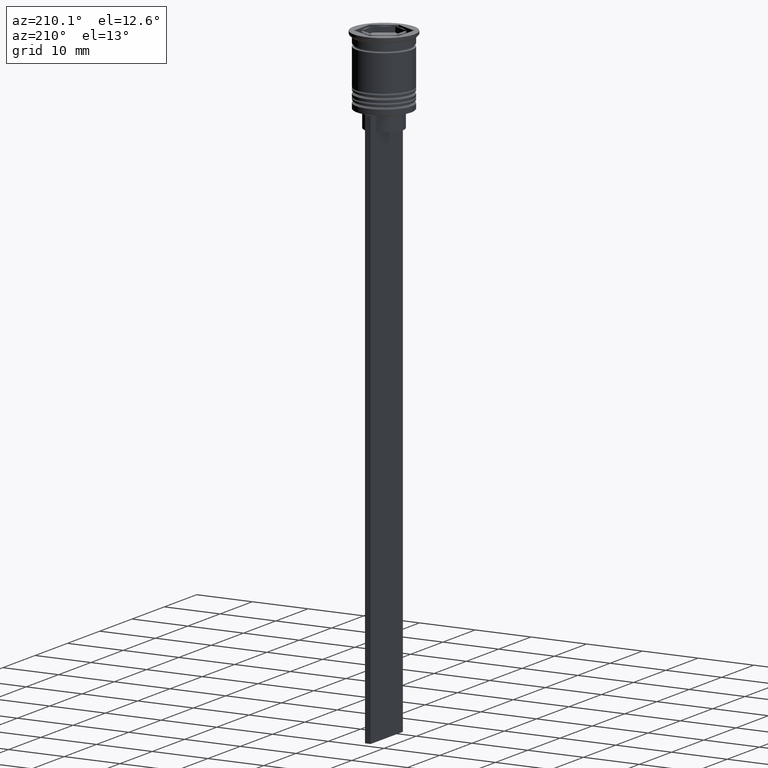
[diagram: clean part render]
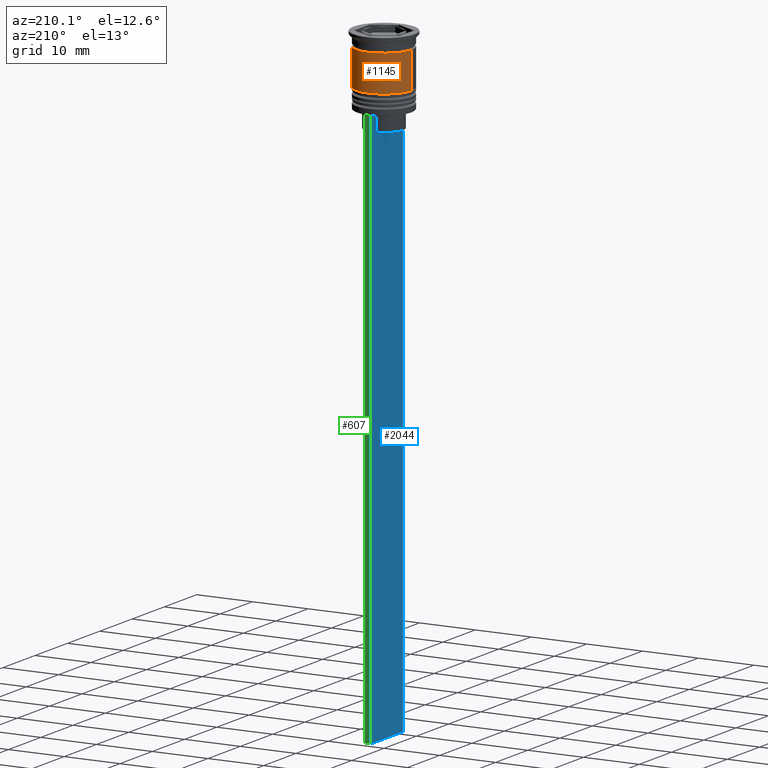
[diagram: same view with three faces highlighted in distinct colors, each labeled with its STEP entity id]
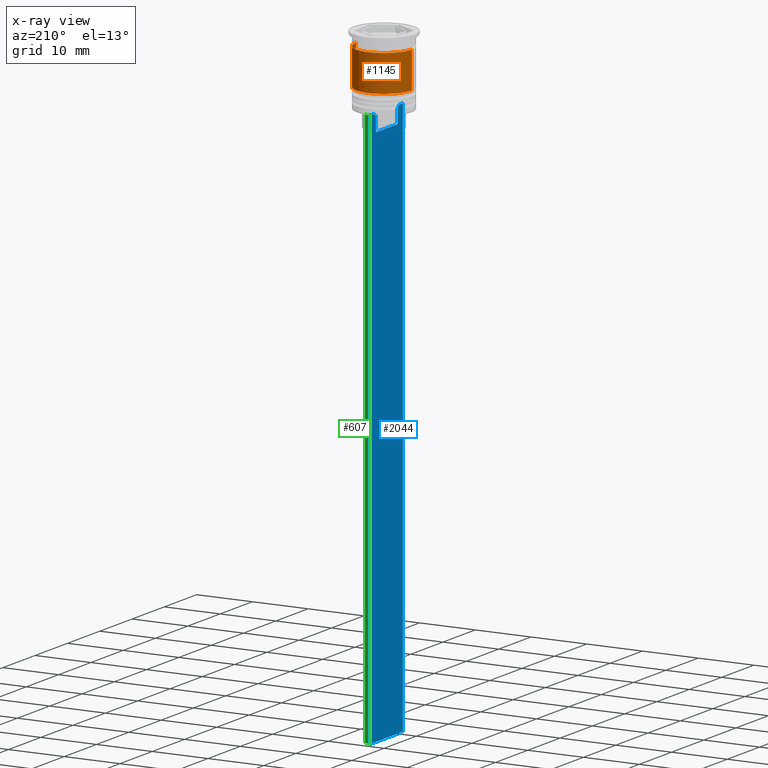
[diagram: x-ray of the same camera — body ghosted, the three highlighted faces saturated]
A machine part, auxiliary view with three faces highlighted in distinct colors.
The next image is the same camera in x-ray (body ghosted, the three faces saturated) — at least one of them is partly hidden behind the body in this view.
Their STEP definitions:

[orange] entity #1145 — the highlighted cylindrical surface (edge-blend (fillet) strip) has radius 5 mm, axis along (-0, -0, 1).
#58 = EDGE_CURVE ( 'NONE', #1689, #1181, #1829, .T. ) ;
#250 = ORIENTED_EDGE ( 'NONE', *, *, #58, .T. ) ;
#358 = DIRECTION ( 'NONE',  ( -0.000000000000000000, -0.000000000000000000, 1.000000000000000000 ) ) ;
#446 = CARTESIAN_POINT ( 'NONE',  ( -5.000000000000000888, 6.123233995736767268E-16, -9.000000000000001776 ) ) ;
#502 = AXIS2_PLACEMENT_3D ( 'NONE', #1012, #358, #2568 ) ;
#648 = DIRECTION ( 'NONE',  ( -0.000000000000000000, -0.000000000000000000, 1.000000000000000000 ) ) ;
#686 = CYLINDRICAL_SURFACE ( 'NONE', #2014, 5.000000000000000000 ) ;
#736 = LINE ( 'NONE', #1928, #2223 ) ;
#811 = LINE ( 'NONE', #1557, #1978 ) ;
#850 = CARTESIAN_POINT ( 'NONE',  ( 4.999999999999999112, 0.000000000000000000, -2.500000000000000000 ) ) ;
#881 = CARTESIAN_POINT ( 'NONE',  ( 0.000000000000000000, 0.000000000000000000, 0.000000000000000000 ) ) ;
#882 = CARTESIAN_POINT ( 'NONE',  ( -4.999999999999999112, 6.123233995736766282E-16, -2.500000000000000000 ) ) ;
#1012 = CARTESIAN_POINT ( 'NONE',  ( 0.000000000000000000, 0.000000000000000000, -9.000000000000001776 ) ) ;
#1145 = ADVANCED_FACE ( 'NONE', ( #2284 ), #686, .T. ) ;
#1147 = DIRECTION ( 'NONE',  ( -0.000000000000000000, -0.000000000000000000, 1.000000000000000000 ) ) ;
#1181 = VERTEX_POINT ( 'NONE', #446 ) ;
#1187 = DIRECTION ( 'NONE',  ( -0.000000000000000000, -0.000000000000000000, 1.000000000000000000 ) ) ;
#1224 = EDGE_CURVE ( 'NONE', #1689, #1441, #736, .T. ) ;
#1290 = AXIS2_PLACEMENT_3D ( 'NONE', #2402, #1187, #1417 ) ;
#1296 = ORIENTED_EDGE ( 'NONE', *, *, #1318, .F. ) ;
#1318 = EDGE_CURVE ( 'NONE', #1441, #2406, #2099, .T. ) ;
#1417 = DIRECTION ( 'NONE',  ( 1.000000000000000000, 0.000000000000000000, 0.000000000000000000 ) ) ;
#1441 = VERTEX_POINT ( 'NONE', #850 ) ;
#1444 = DIRECTION ( 'NONE',  ( 1.000000000000000000, 0.000000000000000000, 0.000000000000000000 ) ) ;
#1512 = EDGE_LOOP ( 'NONE', ( #250, #2447, #1296, #2544 ) ) ;
#1557 = CARTESIAN_POINT ( 'NONE',  ( -5.000000000000000000, 6.123233995736766282E-16, 0.000000000000000000 ) ) ;
#1689 = VERTEX_POINT ( 'NONE', #2112 ) ;
#1789 = EDGE_CURVE ( 'NONE', #1181, #2406, #811, .T. ) ;
#1804 = DIRECTION ( 'NONE',  ( -0.000000000000000000, -0.000000000000000000, 1.000000000000000000 ) ) ;
#1829 = CIRCLE ( 'NONE', #502, 5.000000000000000888 ) ;
#1928 = CARTESIAN_POINT ( 'NONE',  ( 5.000000000000000000, 0.000000000000000000, 0.000000000000000000 ) ) ;
#1978 = VECTOR ( 'NONE', #1804, 1000.000000000000000 ) ;
#2014 = AXIS2_PLACEMENT_3D ( 'NONE', #881, #648, #1444 ) ;
#2099 = CIRCLE ( 'NONE', #1290, 4.999999999999999112 ) ;
#2112 = CARTESIAN_POINT ( 'NONE',  ( 5.000000000000000888, 0.000000000000000000, -9.000000000000001776 ) ) ;
#2223 = VECTOR ( 'NONE', #1147, 1000.000000000000000 ) ;
#2284 = FACE_OUTER_BOUND ( 'NONE', #1512, .T. ) ;
#2402 = CARTESIAN_POINT ( 'NONE',  ( 0.000000000000000000, 0.000000000000000000, -2.500000000000000000 ) ) ;
#2406 = VERTEX_POINT ( 'NONE', #882 ) ;
#2447 = ORIENTED_EDGE ( 'NONE', *, *, #1789, .T. ) ;
#2544 = ORIENTED_EDGE ( 'NONE', *, *, #1224, .F. ) ;
#2568 = DIRECTION ( 'NONE',  ( 1.000000000000000000, 0.000000000000000000, 0.000000000000000000 ) ) ;

[blue] entity #2044 — the highlighted planar face has unit normal (-1, 0, 0).
#4 = CARTESIAN_POINT ( 'NONE',  ( -0.5000000000000000000, -4.999999999999999112, -2.450124378879110054 ) ) ;
#43 = VECTOR ( 'NONE', #1766, 1000.000000000000000 ) ;
#113 = CARTESIAN_POINT ( 'NONE',  ( -0.5000000000000000000, 3.867815921162742754, -12.50000000000000000 ) ) ;
#123 = CARTESIAN_POINT ( 'NONE',  ( -0.5000000000000000000, -3.363034344160045652, -15.50000000000000000 ) ) ;
#167 = ORIENTED_EDGE ( 'NONE', *, *, #573, .F. ) ;
#176 = CARTESIAN_POINT ( 'NONE',  ( -0.5000000000000000000, 3.531412678228260216, -12.83345231756357840 ) ) ;
#189 = CARTESIAN_POINT ( 'NONE',  ( -0.5000000000000000000, -4.999999999999999112, -12.50000000000000000 ) ) ;
#200 = CARTESIAN_POINT ( 'NONE',  ( -0.5000000000000000000, -3.531412985305424801, -12.83345201382502765 ) ) ;
#214 = CARTESIAN_POINT ( 'NONE',  ( -0.5000000000000000000, -4.999999999999999112, -12.50000000000000000 ) ) ;
#225 = ORIENTED_EDGE ( 'NONE', *, *, #614, .F. ) ;
#233 = DIRECTION ( 'NONE',  ( 0.000000000000000000, 0.000000000000000000, -1.000000000000000000 ) ) ;
#241 = PLANE ( 'NONE',  #388 ) ;
#304 = ORIENTED_EDGE ( 'NONE', *, *, #1411, .F. ) ;
#311 = VERTEX_POINT ( 'NONE', #1685 ) ;
#347 = CARTESIAN_POINT ( 'NONE',  ( -0.5000000000000000000, -4.874423042781575788, -12.50000000000000000 ) ) ;
#375 = CARTESIAN_POINT ( 'NONE',  ( -0.5000000000000000000, 3.699657965831574913, -12.66677026074361301 ) ) ;
#379 = VECTOR ( 'NONE', #2231, 1000.000000000000000 ) ;
#388 = AXIS2_PLACEMENT_3D ( 'NONE', #1893, #2383, #1089 ) ;
#414 = VERTEX_POINT ( 'NONE', #1170 ) ;
#422 = CARTESIAN_POINT ( 'NONE',  ( -0.5000000000000000000, -3.867815921162742754, -12.50000000000000000 ) ) ;
#433 = CARTESIAN_POINT ( 'NONE',  ( -0.5000000000000000000, -3.363034344160045208, -13.00000000000000178 ) ) ;
#438 = LINE ( 'NONE', #1229, #1533 ) ;
#513 = CARTESIAN_POINT ( 'NONE',  ( -0.5000000000000000000, 3.867815921162742754, -12.50000000000000000 ) ) ;
#572 = CARTESIAN_POINT ( 'NONE',  ( -0.5000000000000000000, -4.999999999999999112, -112.5000000000000000 ) ) ;
#573 = EDGE_CURVE ( 'NONE', #1711, #2063, #1395, .T. ) ;
#596 = EDGE_CURVE ( 'NONE', #414, #2487, #983, .T. ) ;
#614 = EDGE_CURVE ( 'NONE', #1484, #1945, #438, .T. ) ;
#764 = LINE ( 'NONE', #572, #1712 ) ;
#793 = ORIENTED_EDGE ( 'NONE', *, *, #2006, .F. ) ;
#823 = EDGE_CURVE ( 'NONE', #1945, #2144, #1525, .T. ) ;
#834 = DIRECTION ( 'NONE',  ( 0.000000000000000000, 0.000000000000000000, -1.000000000000000000 ) ) ;
#915 = VECTOR ( 'NONE', #1860, 1000.000000000000000 ) ;
#927 = CARTESIAN_POINT ( 'NONE',  ( -0.5000000000000000000, 5.000000000000000888, -12.50000000000000000 ) ) ;
#943 = EDGE_LOOP ( 'NONE', ( #1652, #2312, #167, #2007, #1872, #1011, #1522, #1549, #304, #793, #1630, #225 ) ) ;
#952 = EDGE_CURVE ( 'NONE', #2487, #311, #990, .T. ) ;
#977 = CARTESIAN_POINT ( 'NONE',  ( -0.5000000000000000000, -3.699658232838647365, -12.66676999593996555 ) ) ;
#983 = LINE ( 'NONE', #214, #2010 ) ;
#990 = LINE ( 'NONE', #2414, #379 ) ;
#1011 = ORIENTED_EDGE ( 'NONE', *, *, #2540, .F. ) ;
#1023 = CARTESIAN_POINT ( 'NONE',  ( -0.5000000000000000000, 5.000000000000000888, -112.5000000000000000 ) ) ;
#1052 = CARTESIAN_POINT ( 'NONE',  ( -0.5000000000000000000, 3.363034344160045208, -13.00000000000000178 ) ) ;
#1059 = CARTESIAN_POINT ( 'NONE',  ( -0.5000000000000000000, -3.363034344160045208, 0.000000000000000000 ) ) ;
#1089 = DIRECTION ( 'NONE',  ( 0.000000000000000000, 0.000000000000000000, 1.000000000000000000 ) ) ;
#1170 = CARTESIAN_POINT ( 'NONE',  ( -0.5000000000000000000, -3.867815921162742754, -12.50000000000000000 ) ) ;
#1208 = CARTESIAN_POINT ( 'NONE',  ( -0.5000000000000000000, 5.000000000000000888, -2.450124378879110054 ) ) ;
#1229 = CARTESIAN_POINT ( 'NONE',  ( -0.5000000000000000000, 3.363034344160045208, 0.000000000000000000 ) ) ;
#1261 = CARTESIAN_POINT ( 'NONE',  ( -0.5000000000000000000, 3.363034344160045652, -15.50000000000000000 ) ) ;
#1295 = CARTESIAN_POINT ( 'NONE',  ( -0.5000000000000000000, 3.363034344160045208, -13.00000000000000178 ) ) ;
#1313 = LINE ( 'NONE', #4, #2333 ) ;
#1395 = LINE ( 'NONE', #2212, #2424 ) ;
#1411 = EDGE_CURVE ( 'NONE', #2356, #414, #1558, .T. ) ;
#1484 = VERTEX_POINT ( 'NONE', #1052 ) ;
#1522 = ORIENTED_EDGE ( 'NONE', *, *, #952, .F. ) ;
#1525 = LINE ( 'NONE', #1727, #2181 ) ;
#1533 = VECTOR ( 'NONE', #834, 1000.000000000000000 ) ;
#1549 = ORIENTED_EDGE ( 'NONE', *, *, #596, .F. ) ;
#1558 = B_SPLINE_CURVE_WITH_KNOTS ( 'NONE', 3,
 ( #433, #200, #977, #422 ),
 .UNSPECIFIED., .F., .F.,
 ( 4, 4 ),
 ( 0.01632394437298965648, 0.01703543518243618576 ),
 .UNSPECIFIED. ) ;
#1569 = DIRECTION ( 'NONE',  ( 0.000000000000000000, 1.000000000000000000, 0.000000000000000000 ) ) ;
#1576 = B_SPLINE_CURVE_WITH_KNOTS ( 'NONE', 3,
 ( #513, #375, #176, #1295 ),
 .UNSPECIFIED., .F., .F.,
 ( 4, 4 ),
 ( 0.006644825462451552783, 0.007355321358912435097 ),
 .UNSPECIFIED. ) ;
#1607 = DIRECTION ( 'NONE',  ( 0.000000000000000000, 0.000000000000000000, -1.000000000000000000 ) ) ;
#1630 = ORIENTED_EDGE ( 'NONE', *, *, #823, .F. ) ;
#1652 = ORIENTED_EDGE ( 'NONE', *, *, #2066, .F. ) ;
#1685 = CARTESIAN_POINT ( 'NONE',  ( -0.5000000000000000000, -4.999999999999999112, -12.50000000000000000 ) ) ;
#1711 = VERTEX_POINT ( 'NONE', #927 ) ;
#1712 = VECTOR ( 'NONE', #1569, 1000.000000000000000 ) ;
#1727 = CARTESIAN_POINT ( 'NONE',  ( -0.5000000000000000000, 3.399999999999998135, -15.50000000000000000 ) ) ;
#1766 = DIRECTION ( 'NONE',  ( 0.000000000000000000, -1.000000000000000000, 0.000000000000000000 ) ) ;
#1779 = CARTESIAN_POINT ( 'NONE',  ( -0.5000000000000000000, 4.874423042781575788, -12.50000000000000000 ) ) ;
#1786 = EDGE_CURVE ( 'NONE', #2146, #1947, #764, .T. ) ;
#1792 = EDGE_CURVE ( 'NONE', #1711, #1947, #1966, .T. ) ;
#1856 = CARTESIAN_POINT ( 'NONE',  ( -0.5000000000000000000, -3.363034344160045208, -13.00000000000000178 ) ) ;
#1860 = DIRECTION ( 'NONE',  ( -0.000000000000000000, -0.000000000000000000, 1.000000000000000000 ) ) ;
#1872 = ORIENTED_EDGE ( 'NONE', *, *, #1786, .F. ) ;
#1893 = CARTESIAN_POINT ( 'NONE',  ( -0.5000000000000000000, -4.999999999999999112, -2.450124378879110054 ) ) ;
#1945 = VERTEX_POINT ( 'NONE', #1261 ) ;
#1947 = VERTEX_POINT ( 'NONE', #1023 ) ;
#1954 = LINE ( 'NONE', #189, #43 ) ;
#1957 = DIRECTION ( 'NONE',  ( 0.000000000000000000, -1.000000000000000000, 0.000000000000000000 ) ) ;
#1966 = LINE ( 'NONE', #1208, #2225 ) ;
#2006 = EDGE_CURVE ( 'NONE', #2144, #2356, #2068, .T. ) ;
#2007 = ORIENTED_EDGE ( 'NONE', *, *, #1792, .T. ) ;
#2010 = VECTOR ( 'NONE', #2015, 1000.000000000000000 ) ;
#2015 = DIRECTION ( 'NONE',  ( 0.000000000000000000, -1.000000000000000000, 0.000000000000000000 ) ) ;
#2029 = FACE_OUTER_BOUND ( 'NONE', #943, .T. ) ;
#2044 = ADVANCED_FACE ( 'NONE', ( #2029 ), #241, .T. ) ;
#2060 = VERTEX_POINT ( 'NONE', #113 ) ;
#2063 = VERTEX_POINT ( 'NONE', #1779 ) ;
#2066 = EDGE_CURVE ( 'NONE', #2060, #1484, #1576, .T. ) ;
#2068 = LINE ( 'NONE', #1059, #915 ) ;
#2144 = VERTEX_POINT ( 'NONE', #123 ) ;
#2146 = VERTEX_POINT ( 'NONE', #2555 ) ;
#2181 = VECTOR ( 'NONE', #1957, 1000.000000000000000 ) ;
#2212 = CARTESIAN_POINT ( 'NONE',  ( -0.5000000000000000000, -4.999999999999999112, -12.50000000000000000 ) ) ;
#2225 = VECTOR ( 'NONE', #1607, 1000.000000000000000 ) ;
#2231 = DIRECTION ( 'NONE',  ( 0.000000000000000000, -1.000000000000000000, 0.000000000000000000 ) ) ;
#2312 = ORIENTED_EDGE ( 'NONE', *, *, #2518, .F. ) ;
#2333 = VECTOR ( 'NONE', #233, 1000.000000000000000 ) ;
#2356 = VERTEX_POINT ( 'NONE', #1856 ) ;
#2383 = DIRECTION ( 'NONE',  ( -1.000000000000000000, 0.000000000000000000, 0.000000000000000000 ) ) ;
#2414 = CARTESIAN_POINT ( 'NONE',  ( -0.5000000000000000000, -4.999999999999999112, -12.50000000000000000 ) ) ;
#2417 = DIRECTION ( 'NONE',  ( 0.000000000000000000, -1.000000000000000000, 0.000000000000000000 ) ) ;
#2424 = VECTOR ( 'NONE', #2417, 1000.000000000000000 ) ;
#2487 = VERTEX_POINT ( 'NONE', #347 ) ;
#2518 = EDGE_CURVE ( 'NONE', #2063, #2060, #1954, .T. ) ;
#2540 = EDGE_CURVE ( 'NONE', #311, #2146, #1313, .T. ) ;
#2555 = CARTESIAN_POINT ( 'NONE',  ( -0.5000000000000000000, -4.999999999999999112, -112.5000000000000000 ) ) ;

[green] entity #607 — the highlighted planar face has unit normal (0, -1, -0).
#45 = DIRECTION ( 'NONE',  ( 0.000000000000000000, -1.000000000000000000, -0.000000000000000000 ) ) ;
#139 = VECTOR ( 'NONE', #1014, 1000.000000000000000 ) ;
#257 = VECTOR ( 'NONE', #2064, 1000.000000000000000 ) ;
#297 = LINE ( 'NONE', #845, #257 ) ;
#427 = VECTOR ( 'NONE', #655, 1000.000000000000000 ) ;
#532 = ORIENTED_EDGE ( 'NONE', *, *, #1990, .T. ) ;
#536 = EDGE_LOOP ( 'NONE', ( #2047, #532, #2045, #1937 ) ) ;
#607 = ADVANCED_FACE ( 'NONE', ( #1603 ), #615, .F. ) ;
#615 = PLANE ( 'NONE',  #1205 ) ;
#655 = DIRECTION ( 'NONE',  ( 1.000000000000000000, 0.000000000000000000, 0.000000000000000000 ) ) ;
#729 = EDGE_CURVE ( 'NONE', #1702, #2360, #297, .T. ) ;
#845 = CARTESIAN_POINT ( 'NONE',  ( 0.5000000000000000000, 5.000000000000000888, -2.450124378879110054 ) ) ;
#927 = CARTESIAN_POINT ( 'NONE',  ( -0.5000000000000000000, 5.000000000000000888, -12.50000000000000000 ) ) ;
#1014 = DIRECTION ( 'NONE',  ( -1.000000000000000000, 0.000000000000000000, 0.000000000000000000 ) ) ;
#1023 = CARTESIAN_POINT ( 'NONE',  ( -0.5000000000000000000, 5.000000000000000888, -112.5000000000000000 ) ) ;
#1205 = AXIS2_PLACEMENT_3D ( 'NONE', #1823, #45, #1616 ) ;
#1208 = CARTESIAN_POINT ( 'NONE',  ( -0.5000000000000000000, 5.000000000000000888, -2.450124378879110054 ) ) ;
#1288 = EDGE_CURVE ( 'NONE', #2360, #1947, #1363, .T. ) ;
#1363 = LINE ( 'NONE', #2577, #139 ) ;
#1603 = FACE_OUTER_BOUND ( 'NONE', #536, .T. ) ;
#1607 = DIRECTION ( 'NONE',  ( 0.000000000000000000, 0.000000000000000000, -1.000000000000000000 ) ) ;
#1616 = DIRECTION ( 'NONE',  ( 0.000000000000000000, 0.000000000000000000, -1.000000000000000000 ) ) ;
#1702 = VERTEX_POINT ( 'NONE', #1910 ) ;
#1711 = VERTEX_POINT ( 'NONE', #927 ) ;
#1792 = EDGE_CURVE ( 'NONE', #1711, #1947, #1966, .T. ) ;
#1823 = CARTESIAN_POINT ( 'NONE',  ( 0.5000000000000000000, 5.000000000000000888, -2.450124378879110054 ) ) ;
#1910 = CARTESIAN_POINT ( 'NONE',  ( 0.5000000000000000000, 5.000000000000000888, -12.50000000000000000 ) ) ;
#1937 = ORIENTED_EDGE ( 'NONE', *, *, #1288, .T. ) ;
#1947 = VERTEX_POINT ( 'NONE', #1023 ) ;
#1966 = LINE ( 'NONE', #1208, #2225 ) ;
#1990 = EDGE_CURVE ( 'NONE', #1711, #1702, #2249, .T. ) ;
#2045 = ORIENTED_EDGE ( 'NONE', *, *, #729, .T. ) ;
#2047 = ORIENTED_EDGE ( 'NONE', *, *, #1792, .F. ) ;
#2053 = CARTESIAN_POINT ( 'NONE',  ( 0.5000000000000000000, 5.000000000000000888, -12.50000000000000000 ) ) ;
#2064 = DIRECTION ( 'NONE',  ( 0.000000000000000000, 0.000000000000000000, -1.000000000000000000 ) ) ;
#2225 = VECTOR ( 'NONE', #1607, 1000.000000000000000 ) ;
#2249 = LINE ( 'NONE', #2053, #427 ) ;
#2360 = VERTEX_POINT ( 'NONE', #2473 ) ;
#2473 = CARTESIAN_POINT ( 'NONE',  ( 0.5000000000000000000, 5.000000000000000888, -112.5000000000000000 ) ) ;
#2577 = CARTESIAN_POINT ( 'NONE',  ( 0.5000000000000000000, 5.000000000000000888, -112.5000000000000000 ) ) ;